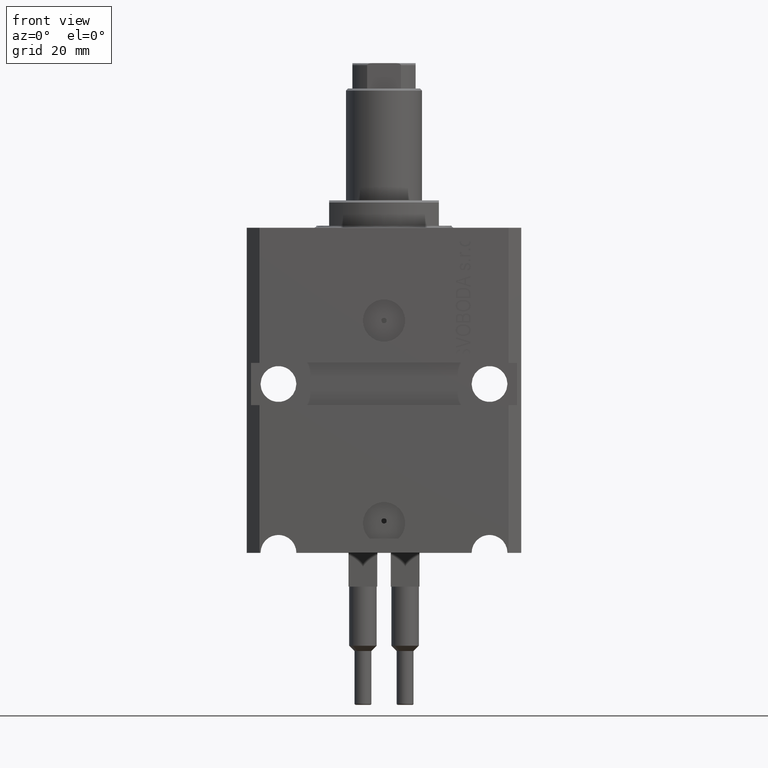
[diagram: clean part render]
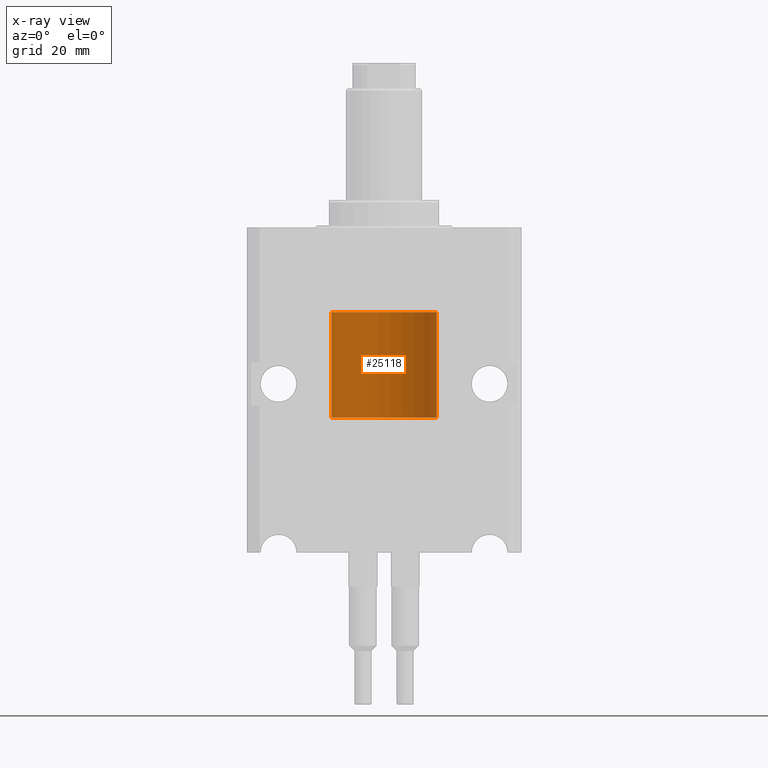
[diagram: x-ray — body ghosted, one internal face saturated and labeled with its STEP entity id]
A machine part, front view, then the same camera in x-ray: the body is ghosted and one INTERNAL B-rep face — a face not visible from any outside direction — is saturated and labeled: STEP entity #25118.
In plain terms, the highlighted cylindrical surface (partial cylindrical patch) has radius 12.5 mm, axis along (-0, -0, -1).
Its self-contained STEP definition (entity closure, byte-faithful):
#59 = ORIENTED_EDGE ( 'NONE', *, *, #10716, .T. ) ;
#474 = DIRECTION ( 'NONE',  ( 0.000000000000000000, 0.000000000000000000, 1.000000000000000000 ) ) ;
#1144 = DIRECTION ( 'NONE',  ( 1.000000000000000000, 0.000000000000000000, 0.000000000000000000 ) ) ;
#2067 = CARTESIAN_POINT ( 'NONE',  ( 0.000000000000000000, 0.000000000000000000, 25.00000000000000000 ) ) ;
#2255 = LINE ( 'NONE', #23117, #37910 ) ;
#4083 = VERTEX_POINT ( 'NONE', #19991 ) ;
#4396 = ORIENTED_EDGE ( 'NONE', *, *, #23467, .F. ) ;
#4927 = DIRECTION ( 'NONE',  ( 0.000000000000000000, 0.000000000000000000, 1.000000000000000000 ) ) ;
#7018 = CIRCLE ( 'NONE', #38511, 12.50000000000000000 ) ;
#9981 = VERTEX_POINT ( 'NONE', #28770 ) ;
#10716 = EDGE_CURVE ( 'NONE', #33405, #4083, #7018, .T. ) ;
#12605 = CYLINDRICAL_SURFACE ( 'NONE', #22499, 12.50000000000000000 ) ;
#14420 = AXIS2_PLACEMENT_3D ( 'NONE', #14587, #4927, #39778 ) ;
#14587 = CARTESIAN_POINT ( 'NONE',  ( 0.000000000000000000, 0.000000000000000000, 25.00000000000000000 ) ) ;
#15518 = EDGE_LOOP ( 'NONE', ( #4396, #28843, #59, #32082 ) ) ;
#16269 = VECTOR ( 'NONE', #27223, 1000.000000000000000 ) ;
#17386 = CARTESIAN_POINT ( 'NONE',  ( 12.50000000000000000, 1.530808498934191521E-15, 25.00000000000000000 ) ) ;
#19991 = CARTESIAN_POINT ( 'NONE',  ( -12.50000000000000000, 0.000000000000000000, 0.000000000000000000 ) ) ;
#22499 = AXIS2_PLACEMENT_3D ( 'NONE', #2067, #22706, #30042 ) ;
#22706 = DIRECTION ( 'NONE',  ( -0.000000000000000000, -0.000000000000000000, -1.000000000000000000 ) ) ;
#23117 = CARTESIAN_POINT ( 'NONE',  ( -12.50000000000000000, 0.000000000000000000, 25.00000000000000000 ) ) ;
#23467 = EDGE_CURVE ( 'NONE', #9981, #41900, #40745, .T. ) ;
#23563 = LINE ( 'NONE', #17386, #16269 ) ;
#25118 = ADVANCED_FACE ( 'NONE', ( #43999 ), #12605, .T. ) ;
#27223 = DIRECTION ( 'NONE',  ( -0.000000000000000000, -0.000000000000000000, -1.000000000000000000 ) ) ;
#28770 = CARTESIAN_POINT ( 'NONE',  ( 12.50000000000000000, 1.530808498934191521E-15, 25.00000000000000000 ) ) ;
#28843 = ORIENTED_EDGE ( 'NONE', *, *, #41299, .T. ) ;
#30042 = DIRECTION ( 'NONE',  ( -1.000000000000000000, 0.000000000000000000, 0.000000000000000000 ) ) ;
#30849 = EDGE_CURVE ( 'NONE', #41900, #4083, #2255, .T. ) ;
#31888 = CARTESIAN_POINT ( 'NONE',  ( 0.000000000000000000, 0.000000000000000000, 0.000000000000000000 ) ) ;
#32082 = ORIENTED_EDGE ( 'NONE', *, *, #30849, .F. ) ;
#33405 = VERTEX_POINT ( 'NONE', #39299 ) ;
#37114 = DIRECTION ( 'NONE',  ( -0.000000000000000000, -0.000000000000000000, -1.000000000000000000 ) ) ;
#37909 = CARTESIAN_POINT ( 'NONE',  ( -12.50000000000000000, 0.000000000000000000, 25.00000000000000000 ) ) ;
#37910 = VECTOR ( 'NONE', #37114, 1000.000000000000000 ) ;
#38511 = AXIS2_PLACEMENT_3D ( 'NONE', #31888, #474, #1144 ) ;
#39299 = CARTESIAN_POINT ( 'NONE',  ( 12.50000000000000000, 1.530808498934191521E-15, 0.000000000000000000 ) ) ;
#39778 = DIRECTION ( 'NONE',  ( 1.000000000000000000, 0.000000000000000000, 0.000000000000000000 ) ) ;
#40745 = CIRCLE ( 'NONE', #14420, 12.50000000000000000 ) ;
#41299 = EDGE_CURVE ( 'NONE', #9981, #33405, #23563, .T. ) ;
#41900 = VERTEX_POINT ( 'NONE', #37909 ) ;
#43999 = FACE_OUTER_BOUND ( 'NONE', #15518, .T. ) ;